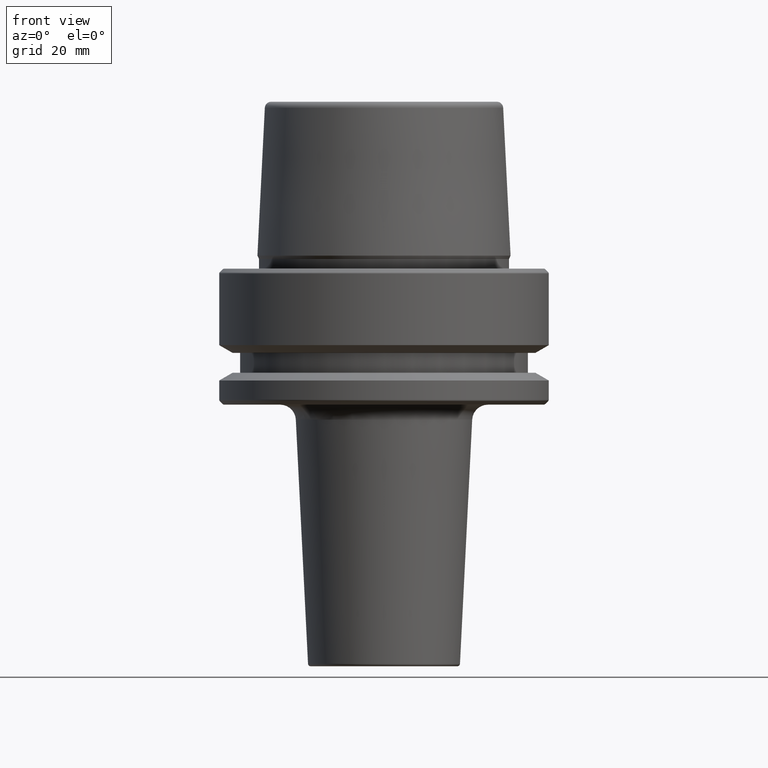
[diagram: clean part render]
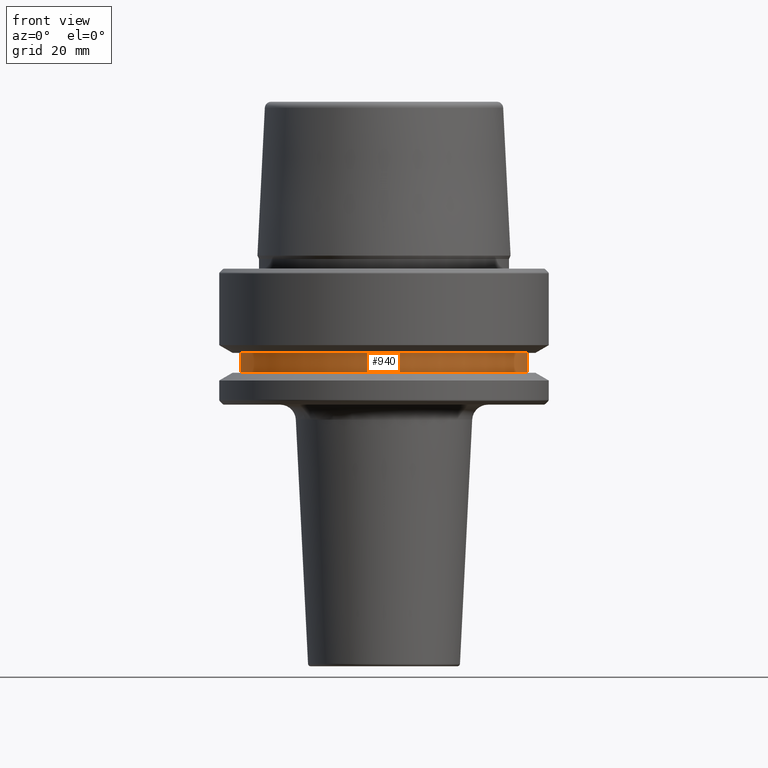
[diagram: same view with one face highlighted and labeled with its STEP entity id]
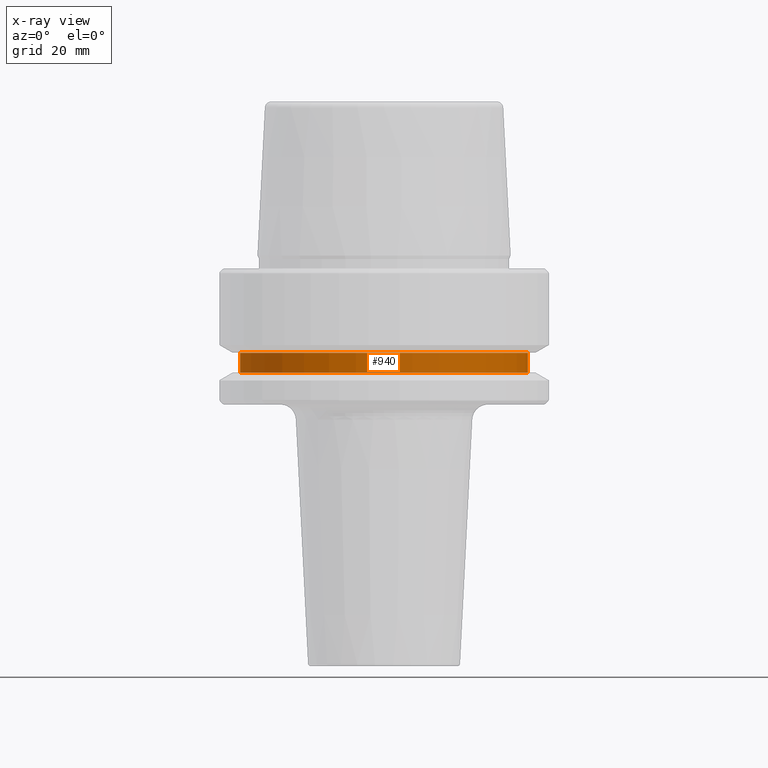
[diagram: x-ray of the same camera — body ghosted, the highlighted face saturated]
A machine part, front view. The second image highlights one B-rep face of the part: STEP entity #940.
The next image is the same camera in x-ray: the body ghosted, the highlighted face saturated — about 0% of this face is hidden behind the body in this view.
In plain terms, the highlighted cylindrical surface (partial cylindrical patch) has radius 27.5 mm, axis along (-0, -0, 1).
Its self-contained STEP definition (entity closure, byte-faithful):
#60 = LINE ( 'NONE', #384, #790 ) ;
#164 = VERTEX_POINT ( 'NONE', #673 ) ;
#177 = ORIENTED_EDGE ( 'NONE', *, *, #207, .F. ) ;
#183 = VERTEX_POINT ( 'NONE', #1020 ) ;
#199 = DIRECTION ( 'NONE',  ( -0.0000000000000000000, -0.0000000000000000000, 1.000000000000000000 ) ) ;
#207 = EDGE_CURVE ( 'NONE', #282, #183, #795, .T. ) ;
#208 = CARTESIAN_POINT ( 'NONE',  ( -27.49999999999999600, 3.367778697655220900E-015, -19.90000000000001600 ) ) ;
#215 = EDGE_LOOP ( 'NONE', ( #1039, #823, #1076, #177 ) ) ;
#282 = VERTEX_POINT ( 'NONE', #817 ) ;
#316 = CARTESIAN_POINT ( 'NONE',  ( 0.0000000000000000000, 0.0000000000000000000, -16.10000000000001600 ) ) ;
#384 = CARTESIAN_POINT ( 'NONE',  ( 27.49999999999999600, 0.0000000000000000000, 78.96908074195309300 ) ) ;
#418 = CARTESIAN_POINT ( 'NONE',  ( 0.0000000000000000000, 0.0000000000000000000, 78.96908074195309300 ) ) ;
#453 = VECTOR ( 'NONE', #490, 1000.000000000000000 ) ;
#490 = DIRECTION ( 'NONE',  ( -0.0000000000000000000, -0.0000000000000000000, 1.000000000000000000 ) ) ;
#493 = DIRECTION ( 'NONE',  ( -0.0000000000000000000, -0.0000000000000000000, 1.000000000000000000 ) ) ;
#565 = CARTESIAN_POINT ( 'NONE',  ( 0.0000000000000000000, 0.0000000000000000000, -19.90000000000001600 ) ) ;
#600 = FACE_OUTER_BOUND ( 'NONE', #215, .T. ) ;
#658 = DIRECTION ( 'NONE',  ( -0.0000000000000000000, -0.0000000000000000000, 1.000000000000000000 ) ) ;
#673 = CARTESIAN_POINT ( 'NONE',  ( 27.49999999999999600, 0.0000000000000000000, -19.90000000000001600 ) ) ;
#697 = DIRECTION ( 'NONE',  ( 1.000000000000000000, 0.0000000000000000000, 0.0000000000000000000 ) ) ;
#733 = VERTEX_POINT ( 'NONE', #208 ) ;
#782 = CARTESIAN_POINT ( 'NONE',  ( -27.49999999999999600, 3.367778697655220900E-015, 78.96908074195309300 ) ) ;
#790 = VECTOR ( 'NONE', #199, 1000.000000000000000 ) ;
#795 = CIRCLE ( 'NONE', #1061, 27.49999999999999600 ) ;
#817 = CARTESIAN_POINT ( 'NONE',  ( -27.49999999999999600, 3.367778697655220900E-015, -16.10000000000001600 ) ) ;
#823 = ORIENTED_EDGE ( 'NONE', *, *, #956, .T. ) ;
#857 = CYLINDRICAL_SURFACE ( 'NONE', #960, 27.49999999999999600 ) ;
#866 = DIRECTION ( 'NONE',  ( 1.000000000000000000, 0.0000000000000000000, 0.0000000000000000000 ) ) ;
#940 = ADVANCED_FACE ( 'NONE', ( #600 ), #857, .T. ) ;
#956 = EDGE_CURVE ( 'NONE', #733, #164, #1094, .T. ) ;
#960 = AXIS2_PLACEMENT_3D ( 'NONE', #418, #982, #1086 ) ;
#982 = DIRECTION ( 'NONE',  ( -0.0000000000000000000, -0.0000000000000000000, 1.000000000000000000 ) ) ;
#992 = EDGE_CURVE ( 'NONE', #164, #183, #60, .T. ) ;
#1020 = CARTESIAN_POINT ( 'NONE',  ( 27.49999999999999600, 0.0000000000000000000, -16.10000000000001600 ) ) ;
#1029 = AXIS2_PLACEMENT_3D ( 'NONE', #565, #658, #866 ) ;
#1039 = ORIENTED_EDGE ( 'NONE', *, *, #1149, .F. ) ;
#1061 = AXIS2_PLACEMENT_3D ( 'NONE', #316, #493, #697 ) ;
#1076 = ORIENTED_EDGE ( 'NONE', *, *, #992, .T. ) ;
#1086 = DIRECTION ( 'NONE',  ( 1.000000000000000000, 0.0000000000000000000, 0.0000000000000000000 ) ) ;
#1094 = CIRCLE ( 'NONE', #1029, 27.49999999999999600 ) ;
#1149 = EDGE_CURVE ( 'NONE', #733, #282, #1159, .T. ) ;
#1159 = LINE ( 'NONE', #782, #453 ) ;